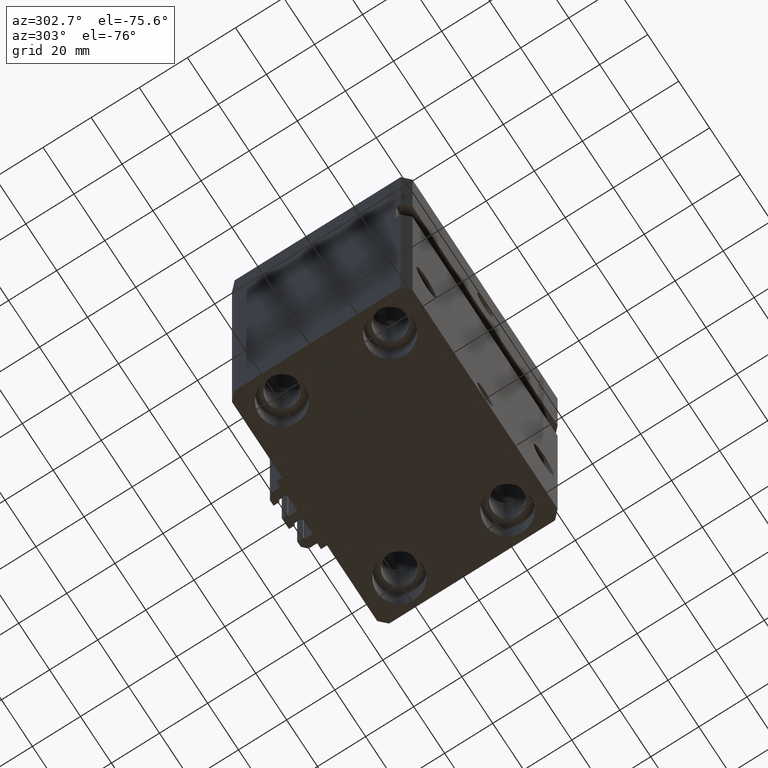
[diagram: clean part render]
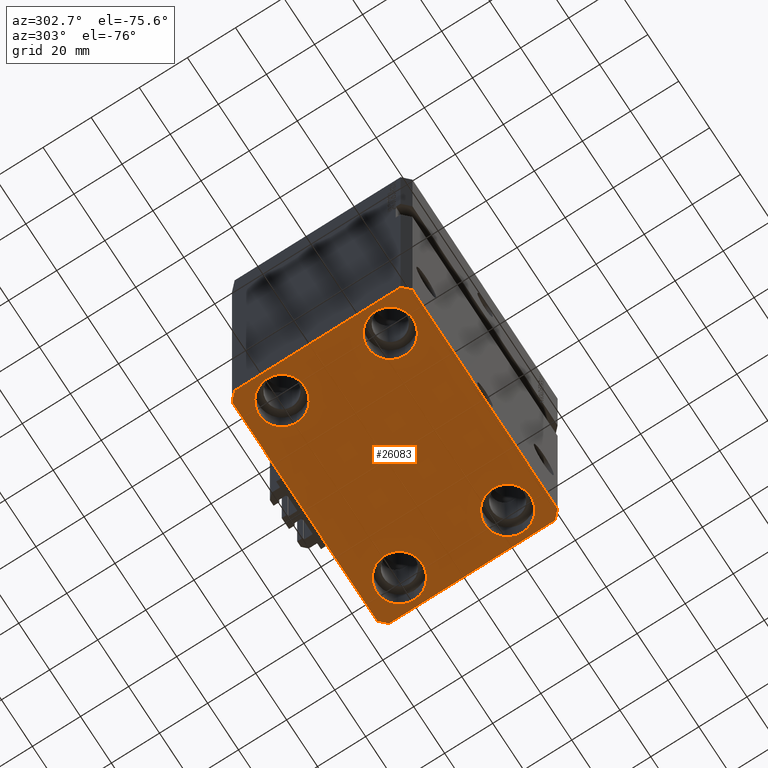
[diagram: same view with one face highlighted and labeled with its STEP entity id]
A machine part, auxiliary view. The second image highlights one B-rep face of the part: STEP entity #26083.
In plain terms, the highlighted planar face has unit normal (0, 0, 1).
Its self-contained STEP definition (entity closure, byte-faithful):
#177 = CARTESIAN_POINT ( 'NONE',  ( -47.50000000000000711, 22.50000000000000000, -155.0000000000000000 ) ) ;
#1525 = VECTOR ( 'NONE', #19111, 1000.000000000000000 ) ;
#2029 = AXIS2_PLACEMENT_3D ( 'NONE', #2705, #21374, #37039 ) ;
#2254 = AXIS2_PLACEMENT_3D ( 'NONE', #49435, #3260, #2766 ) ;
#2293 = ORIENTED_EDGE ( 'NONE', *, *, #17598, .F. ) ;
#2705 = CARTESIAN_POINT ( 'NONE',  ( -38.00000000000000711, 22.50000000000000000, -155.0000000000000000 ) ) ;
#2766 = DIRECTION ( 'NONE',  ( 1.000000000000000000, 0.000000000000000000, -0.000000000000000000 ) ) ;
#2804 = CARTESIAN_POINT ( 'NONE',  ( 47.00000000000000000, -37.50000000000000711, -155.0000000000000000 ) ) ;
#2941 = CARTESIAN_POINT ( 'NONE',  ( -50.00000000000001421, 34.50000000000000000, -155.0000000000000000 ) ) ;
#3195 = DIRECTION ( 'NONE',  ( 2.011273595335428326E-16, -1.000000000000000000, 0.000000000000000000 ) ) ;
#3260 = DIRECTION ( 'NONE',  ( 0.000000000000000000, 0.000000000000000000, 1.000000000000000000 ) ) ;
#3569 = VERTEX_POINT ( 'NONE', #45270 ) ;
#4126 = ORIENTED_EDGE ( 'NONE', *, *, #15626, .F. ) ;
#4781 = ORIENTED_EDGE ( 'NONE', *, *, #28396, .F. ) ;
#5583 = DIRECTION ( 'NONE',  ( -0.000000000000000000, -0.000000000000000000, 1.000000000000000000 ) ) ;
#5591 = CIRCLE ( 'NONE', #35416, 9.500000000000001776 ) ;
#6324 = ORIENTED_EDGE ( 'NONE', *, *, #31710, .T. ) ;
#6334 = CARTESIAN_POINT ( 'NONE',  ( 38.00000000000000711, -22.50000000000000000, -155.0000000000000000 ) ) ;
#6495 = VERTEX_POINT ( 'NONE', #48564 ) ;
#6529 = LINE ( 'NONE', #30466, #1525 ) ;
#6690 = ORIENTED_EDGE ( 'NONE', *, *, #48489, .F. ) ;
#8335 = DIRECTION ( 'NONE',  ( 1.000000000000000000, 0.000000000000000000, 0.000000000000000000 ) ) ;
#8791 = CARTESIAN_POINT ( 'NONE',  ( 47.50000000000000711, 22.50000000000001421, -155.0000000000000000 ) ) ;
#9217 = VERTEX_POINT ( 'NONE', #14208 ) ;
#9327 = ORIENTED_EDGE ( 'NONE', *, *, #9556, .T. ) ;
#9463 = DIRECTION ( 'NONE',  ( 0.7071067811865491270, -0.7071067811865459074, 0.000000000000000000 ) ) ;
#9556 = EDGE_CURVE ( 'NONE', #45797, #6495, #45261, .T. ) ;
#9792 = VERTEX_POINT ( 'NONE', #24443 ) ;
#10094 = CIRCLE ( 'NONE', #2029, 9.500000000000001776 ) ;
#10690 = EDGE_CURVE ( 'NONE', #49462, #31036, #15065, .T. ) ;
#11057 = CARTESIAN_POINT ( 'NONE',  ( 47.00000000000000000, -37.50000000000000711, -155.0000000000000000 ) ) ;
#11516 = VERTEX_POINT ( 'NONE', #11057 ) ;
#12114 = CARTESIAN_POINT ( 'NONE',  ( 50.00000000000051870, 34.49999999999995026, -155.0000000000000000 ) ) ;
#12626 = FACE_BOUND ( 'NONE', #42463, .T. ) ;
#12833 = DIRECTION ( 'NONE',  ( 1.000000000000000000, 0.000000000000000000, 0.000000000000000000 ) ) ;
#12895 = DIRECTION ( 'NONE',  ( 1.000000000000000000, 0.000000000000000000, 0.000000000000000000 ) ) ;
#12932 = ORIENTED_EDGE ( 'NONE', *, *, #48482, .T. ) ;
#13474 = AXIS2_PLACEMENT_3D ( 'NONE', #31457, #20105, #23152 ) ;
#14208 = CARTESIAN_POINT ( 'NONE',  ( -47.50000000000000711, -22.50000000000000000, -155.0000000000000000 ) ) ;
#14548 = ORIENTED_EDGE ( 'NONE', *, *, #27108, .F. ) ;
#15065 = LINE ( 'NONE', #30440, #40520 ) ;
#15314 = DIRECTION ( 'NONE',  ( -1.000000000000000000, 7.381802025433175941E-17, 0.000000000000000000 ) ) ;
#15626 = EDGE_CURVE ( 'NONE', #11516, #3569, #37374, .T. ) ;
#15659 = EDGE_CURVE ( 'NONE', #18304, #47647, #19676, .T. ) ;
#15695 = CARTESIAN_POINT ( 'NONE',  ( -50.00000000000001421, 34.50000000000000000, -155.0000000000000000 ) ) ;
#16005 = CIRCLE ( 'NONE', #49853, 9.500000000000001776 ) ;
#16114 = EDGE_LOOP ( 'NONE', ( #32301, #49801 ) ) ;
#17598 = EDGE_CURVE ( 'NONE', #37025, #27339, #45843, .T. ) ;
#17613 = CARTESIAN_POINT ( 'NONE',  ( -38.00000000000000711, -22.50000000000000000, -155.0000000000000000 ) ) ;
#17656 = FACE_OUTER_BOUND ( 'NONE', #18518, .T. ) ;
#17837 = CIRCLE ( 'NONE', #28264, 9.500000000000001776 ) ;
#18047 = AXIS2_PLACEMENT_3D ( 'NONE', #33579, #48978, #8335 ) ;
#18172 = DIRECTION ( 'NONE',  ( 0.7071067811865483499, 0.7071067811865466846, 0.000000000000000000 ) ) ;
#18304 = VERTEX_POINT ( 'NONE', #8791 ) ;
#18494 = CARTESIAN_POINT ( 'NONE',  ( 28.50000000000000355, 22.50000000000001421, -155.0000000000000000 ) ) ;
#18518 = EDGE_LOOP ( 'NONE', ( #42060, #28849, #4781, #4126, #6690, #21778, #2293, #14548 ) ) ;
#18745 = CARTESIAN_POINT ( 'NONE',  ( 47.50000000000000711, -22.50000000000000000, -155.0000000000000000 ) ) ;
#19037 = CARTESIAN_POINT ( 'NONE',  ( -38.00000000000000711, -22.50000000000000000, -155.0000000000000000 ) ) ;
#19111 = DIRECTION ( 'NONE',  ( 7.441712302741091634E-15, 1.000000000000000000, 0.000000000000000000 ) ) ;
#19676 = CIRCLE ( 'NONE', #18047, 9.500000000000001776 ) ;
#20105 = DIRECTION ( 'NONE',  ( -0.000000000000000000, -0.000000000000000000, 1.000000000000000000 ) ) ;
#20403 = DIRECTION ( 'NONE',  ( -0.000000000000000000, -0.000000000000000000, 1.000000000000000000 ) ) ;
#20440 = FACE_BOUND ( 'NONE', #16114, .T. ) ;
#21145 = EDGE_LOOP ( 'NONE', ( #41742, #9327 ) ) ;
#21374 = DIRECTION ( 'NONE',  ( -0.000000000000000000, -0.000000000000000000, 1.000000000000000000 ) ) ;
#21778 = ORIENTED_EDGE ( 'NONE', *, *, #30820, .F. ) ;
#22255 = CIRCLE ( 'NONE', #47280, 9.500000000000001776 ) ;
#22655 = AXIS2_PLACEMENT_3D ( 'NONE', #6334, #5583, #12895 ) ;
#23152 = DIRECTION ( 'NONE',  ( 1.000000000000000000, 0.000000000000000000, 0.000000000000000000 ) ) ;
#23731 = EDGE_CURVE ( 'NONE', #31481, #9217, #22255, .T. ) ;
#24187 = CARTESIAN_POINT ( 'NONE',  ( -50.00000000000000000, -34.50000000000000000, -155.0000000000000000 ) ) ;
#24443 = CARTESIAN_POINT ( 'NONE',  ( 50.00000000000051870, 34.49999999999995026, -155.0000000000000000 ) ) ;
#24999 = EDGE_CURVE ( 'NONE', #47647, #18304, #35251, .T. ) ;
#25741 = CARTESIAN_POINT ( 'NONE',  ( -47.00000000000001421, 37.50000000000000000, -155.0000000000000000 ) ) ;
#26083 = ADVANCED_FACE ( 'NONE', ( #12626, #28004, #20440, #37827, #17656 ), #49187, .F. ) ;
#27108 = EDGE_CURVE ( 'NONE', #31036, #37025, #29995, .T. ) ;
#27339 = VERTEX_POINT ( 'NONE', #24187 ) ;
#28004 = FACE_BOUND ( 'NONE', #21145, .T. ) ;
#28264 = AXIS2_PLACEMENT_3D ( 'NONE', #19037, #34198, #34453 ) ;
#28286 = EDGE_CURVE ( 'NONE', #9792, #49462, #32021, .T. ) ;
#28396 = EDGE_CURVE ( 'NONE', #3569, #9792, #6529, .T. ) ;
#28612 = LINE ( 'NONE', #44040, #49825 ) ;
#28701 = DIRECTION ( 'NONE',  ( -0.000000000000000000, -0.000000000000000000, 1.000000000000000000 ) ) ;
#28834 = VECTOR ( 'NONE', #41895, 1000.000000000000000 ) ;
#28849 = ORIENTED_EDGE ( 'NONE', *, *, #28286, .F. ) ;
#28932 = DIRECTION ( 'NONE',  ( 1.000000000000000000, -1.476360405086644309E-16, 0.000000000000000000 ) ) ;
#29187 = CARTESIAN_POINT ( 'NONE',  ( 47.00000000000056843, 37.49999999999999289, -155.0000000000000000 ) ) ;
#29464 = VERTEX_POINT ( 'NONE', #41354 ) ;
#29995 = LINE ( 'NONE', #25741, #28834 ) ;
#30440 = CARTESIAN_POINT ( 'NONE',  ( 47.00000000000056843, 37.49999999999999289, -155.0000000000000000 ) ) ;
#30466 = CARTESIAN_POINT ( 'NONE',  ( 50.00000000000000000, -34.50000000000000711, -155.0000000000000000 ) ) ;
#30820 = EDGE_CURVE ( 'NONE', #27339, #29464, #28612, .T. ) ;
#30853 = ORIENTED_EDGE ( 'NONE', *, *, #36091, .T. ) ;
#31036 = VERTEX_POINT ( 'NONE', #37523 ) ;
#31138 = VERTEX_POINT ( 'NONE', #177 ) ;
#31457 = CARTESIAN_POINT ( 'NONE',  ( 38.00000000000000711, 22.50000000000001421, -155.0000000000000000 ) ) ;
#31481 = VERTEX_POINT ( 'NONE', #43988 ) ;
#31710 = EDGE_CURVE ( 'NONE', #31138, #36510, #16005, .T. ) ;
#32021 = LINE ( 'NONE', #12114, #35348 ) ;
#32301 = ORIENTED_EDGE ( 'NONE', *, *, #24999, .T. ) ;
#33042 = EDGE_CURVE ( 'NONE', #6495, #45797, #5591, .T. ) ;
#33579 = CARTESIAN_POINT ( 'NONE',  ( 38.00000000000000711, 22.50000000000001421, -155.0000000000000000 ) ) ;
#33609 = DIRECTION ( 'NONE',  ( 1.000000000000000000, 0.000000000000000000, 0.000000000000000000 ) ) ;
#34198 = DIRECTION ( 'NONE',  ( -0.000000000000000000, -0.000000000000000000, 1.000000000000000000 ) ) ;
#34453 = DIRECTION ( 'NONE',  ( 1.000000000000000000, 0.000000000000000000, 0.000000000000000000 ) ) ;
#35251 = CIRCLE ( 'NONE', #13474, 9.500000000000001776 ) ;
#35348 = VECTOR ( 'NONE', #43642, 1000.000000000000114 ) ;
#35416 = AXIS2_PLACEMENT_3D ( 'NONE', #40093, #20403, #12833 ) ;
#35791 = CARTESIAN_POINT ( 'NONE',  ( -28.50000000000000355, 22.50000000000000000, -155.0000000000000000 ) ) ;
#35953 = ORIENTED_EDGE ( 'NONE', *, *, #23731, .T. ) ;
#36091 = EDGE_CURVE ( 'NONE', #9217, #31481, #17837, .T. ) ;
#36510 = VERTEX_POINT ( 'NONE', #35791 ) ;
#37025 = VERTEX_POINT ( 'NONE', #15695 ) ;
#37039 = DIRECTION ( 'NONE',  ( 1.000000000000000000, 0.000000000000000000, 0.000000000000000000 ) ) ;
#37374 = LINE ( 'NONE', #2804, #38237 ) ;
#37523 = CARTESIAN_POINT ( 'NONE',  ( -47.00000000000001421, 37.50000000000000000, -155.0000000000000000 ) ) ;
#37827 = FACE_BOUND ( 'NONE', #47807, .T. ) ;
#38237 = VECTOR ( 'NONE', #18172, 1000.000000000000000 ) ;
#40092 = DIRECTION ( 'NONE',  ( 1.000000000000000000, 0.000000000000000000, 0.000000000000000000 ) ) ;
#40093 = CARTESIAN_POINT ( 'NONE',  ( 38.00000000000000711, -22.50000000000000000, -155.0000000000000000 ) ) ;
#40520 = VECTOR ( 'NONE', #15314, 1000.000000000000000 ) ;
#40587 = VECTOR ( 'NONE', #3195, 1000.000000000000000 ) ;
#41314 = CARTESIAN_POINT ( 'NONE',  ( -47.00000000000000000, -37.49999999999999289, -155.0000000000000000 ) ) ;
#41354 = CARTESIAN_POINT ( 'NONE',  ( -47.00000000000000000, -37.49999999999999289, -155.0000000000000000 ) ) ;
#41695 = DIRECTION ( 'NONE',  ( -0.000000000000000000, -0.000000000000000000, 1.000000000000000000 ) ) ;
#41742 = ORIENTED_EDGE ( 'NONE', *, *, #33042, .T. ) ;
#41895 = DIRECTION ( 'NONE',  ( -0.7071067811865483499, -0.7071067811865466846, 0.000000000000000000 ) ) ;
#42060 = ORIENTED_EDGE ( 'NONE', *, *, #10690, .F. ) ;
#42463 = EDGE_LOOP ( 'NONE', ( #30853, #35953 ) ) ;
#43642 = DIRECTION ( 'NONE',  ( -0.7071067811865361374, 0.7071067811865588970, 0.000000000000000000 ) ) ;
#43988 = CARTESIAN_POINT ( 'NONE',  ( -28.50000000000000355, -22.50000000000000000, -155.0000000000000000 ) ) ;
#44040 = CARTESIAN_POINT ( 'NONE',  ( -50.00000000000000000, -34.50000000000000000, -155.0000000000000000 ) ) ;
#45223 = CARTESIAN_POINT ( 'NONE',  ( -38.00000000000000711, 22.50000000000000000, -155.0000000000000000 ) ) ;
#45261 = CIRCLE ( 'NONE', #22655, 9.500000000000001776 ) ;
#45270 = CARTESIAN_POINT ( 'NONE',  ( 50.00000000000000000, -34.50000000000000711, -155.0000000000000000 ) ) ;
#45797 = VERTEX_POINT ( 'NONE', #18745 ) ;
#45843 = LINE ( 'NONE', #2941, #40587 ) ;
#47174 = VECTOR ( 'NONE', #28932, 1000.000000000000000 ) ;
#47280 = AXIS2_PLACEMENT_3D ( 'NONE', #17613, #28701, #40092 ) ;
#47647 = VERTEX_POINT ( 'NONE', #18494 ) ;
#47807 = EDGE_LOOP ( 'NONE', ( #6324, #12932 ) ) ;
#48138 = LINE ( 'NONE', #41314, #47174 ) ;
#48482 = EDGE_CURVE ( 'NONE', #36510, #31138, #10094, .T. ) ;
#48489 = EDGE_CURVE ( 'NONE', #29464, #11516, #48138, .T. ) ;
#48564 = CARTESIAN_POINT ( 'NONE',  ( 28.50000000000000355, -22.50000000000000000, -155.0000000000000000 ) ) ;
#48978 = DIRECTION ( 'NONE',  ( -0.000000000000000000, -0.000000000000000000, 1.000000000000000000 ) ) ;
#49187 = PLANE ( 'NONE',  #2254 ) ;
#49435 = CARTESIAN_POINT ( 'NONE',  ( 0.000000000000000000, 0.000000000000000000, -155.0000000000000000 ) ) ;
#49462 = VERTEX_POINT ( 'NONE', #29187 ) ;
#49801 = ORIENTED_EDGE ( 'NONE', *, *, #15659, .T. ) ;
#49825 = VECTOR ( 'NONE', #9463, 1000.000000000000114 ) ;
#49853 = AXIS2_PLACEMENT_3D ( 'NONE', #45223, #41695, #33609 ) ;